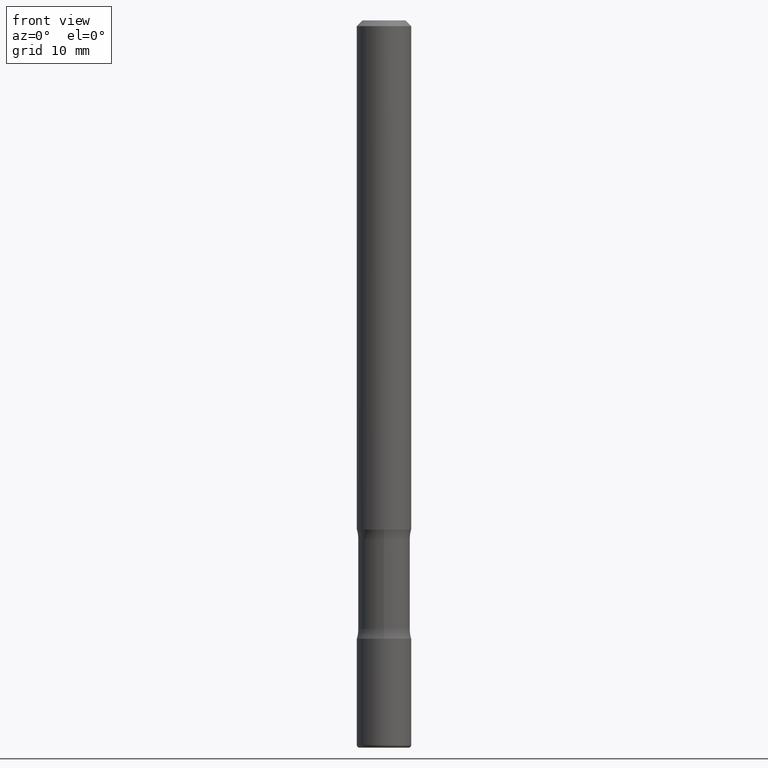
[diagram: clean part render]
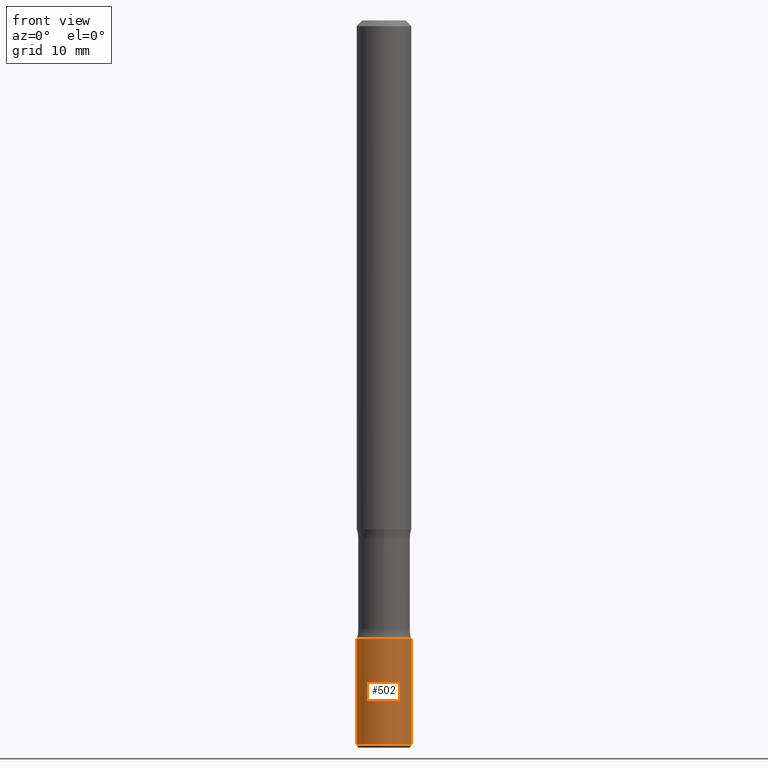
[diagram: same view with one face highlighted and labeled with its STEP entity id]
A machine part, front view. The second image highlights one B-rep face of the part: STEP entity #502.
In plain terms, the highlighted cylindrical surface (edge-blend (fillet) strip) has radius 2.3813 mm, axis along (-0, 0, 1).
Its self-contained STEP definition (entity closure, byte-faithful):
#16 = VERTEX_POINT ( 'NONE', #392 ) ;
#51 = ORIENTED_EDGE ( 'NONE', *, *, #315, .T. ) ;
#57 = VERTEX_POINT ( 'NONE', #299 ) ;
#59 = CYLINDRICAL_SURFACE ( 'NONE', #490, 0.09375000000000002776 ) ;
#91 = VERTEX_POINT ( 'NONE', #205 ) ;
#97 = ORIENTED_EDGE ( 'NONE', *, *, #145, .T. ) ;
#101 = EDGE_CURVE ( 'NONE', #57, #16, #489, .T. ) ;
#125 = CARTESIAN_POINT ( 'NONE',  ( -0.09375000000000002776, 6.661338147750941215E-16, -4.611501647113975397E-30 ) ) ;
#140 = DIRECTION ( 'NONE',  ( -2.445468806185136877E-29, 3.491481338843145188E-15, 1.000000000000000000 ) ) ;
#145 = EDGE_CURVE ( 'NONE', #91, #530, #378, .T. ) ;
#146 = DIRECTION ( 'NONE',  ( 1.000000000000000000, -6.982962677686265922E-15, 4.876176775795935793E-29 ) ) ;
#154 = VECTOR ( 'NONE', #303, 39.37007874015748143 ) ;
#156 = VECTOR ( 'NONE', #140, 39.37007874015748143 ) ;
#205 = CARTESIAN_POINT ( 'NONE',  ( -0.09375000000000005551, -8.027654718944337792E-15, -2.489999999999999769 ) ) ;
#213 = CARTESIAN_POINT ( 'NONE',  ( 0.09375000000000002776, -6.546527510330876027E-16, 4.571415727308691207E-30 ) ) ;
#219 = EDGE_CURVE ( 'NONE', #91, #57, #424, .T. ) ;
#232 = DIRECTION ( 'NONE',  ( -2.445468806185136597E-29, 3.491481338843145583E-15, 1.000000000000000000 ) ) ;
#253 = DIRECTION ( 'NONE',  ( 1.000000000000000000, -6.982962677686270655E-15, 0.000000000000000000 ) ) ;
#259 = CARTESIAN_POINT ( 'NONE',  ( 6.089217327400989947E-29, -8.693788533719431716E-15, -2.489999999999999769 ) ) ;
#261 = LINE ( 'NONE', #213, #156 ) ;
#299 = CARTESIAN_POINT ( 'NONE',  ( -0.09375000000000002776, -7.390459374605464534E-15, -2.125000000000000000 ) ) ;
#300 = DIRECTION ( 'NONE',  ( -2.445468806185136597E-29, 3.491481338843145583E-15, 1.000000000000000000 ) ) ;
#303 = DIRECTION ( 'NONE',  ( -2.445468806185136877E-29, 3.491481338843145188E-15, 1.000000000000000000 ) ) ;
#310 = FACE_OUTER_BOUND ( 'NONE', #427, .T. ) ;
#315 = EDGE_CURVE ( 'NONE', #530, #16, #261, .T. ) ;
#350 = CARTESIAN_POINT ( 'NONE',  ( 5.196621213143415268E-29, -7.419397845041685201E-15, -2.125000000000000000 ) ) ;
#367 = AXIS2_PLACEMENT_3D ( 'NONE', #350, #464, #516 ) ;
#368 = ORIENTED_EDGE ( 'NONE', *, *, #101, .F. ) ;
#378 = CIRCLE ( 'NONE', #504, 0.09375000000000002776 ) ;
#392 = CARTESIAN_POINT ( 'NONE',  ( 0.09375000000000002776, -8.074050596074771916E-15, -2.125000000000000000 ) ) ;
#424 = LINE ( 'NONE', #125, #154 ) ;
#427 = EDGE_LOOP ( 'NONE', ( #440, #97, #51, #368 ) ) ;
#440 = ORIENTED_EDGE ( 'NONE', *, *, #219, .F. ) ;
#464 = DIRECTION ( 'NONE',  ( -2.445468806185136597E-29, 3.491481338843145583E-15, 1.000000000000000000 ) ) ;
#489 = CIRCLE ( 'NONE', #367, 0.09375000000000002776 ) ;
#490 = AXIS2_PLACEMENT_3D ( 'NONE', #531, #232, #146 ) ;
#502 = ADVANCED_FACE ( 'NONE', ( #310 ), #59, .T. ) ;
#504 = AXIS2_PLACEMENT_3D ( 'NONE', #259, #300, #253 ) ;
#516 = DIRECTION ( 'NONE',  ( 1.000000000000000000, -6.982962677686270655E-15, 0.000000000000000000 ) ) ;
#530 = VERTEX_POINT ( 'NONE', #540 ) ;
#531 = CARTESIAN_POINT ( 'NONE',  ( 0.000000000000000000, 0.000000000000000000, 0.000000000000000000 ) ) ;
#540 = CARTESIAN_POINT ( 'NONE',  ( 0.09375000000000005551, -9.348441284752520009E-15, -2.489999999999999769 ) ) ;